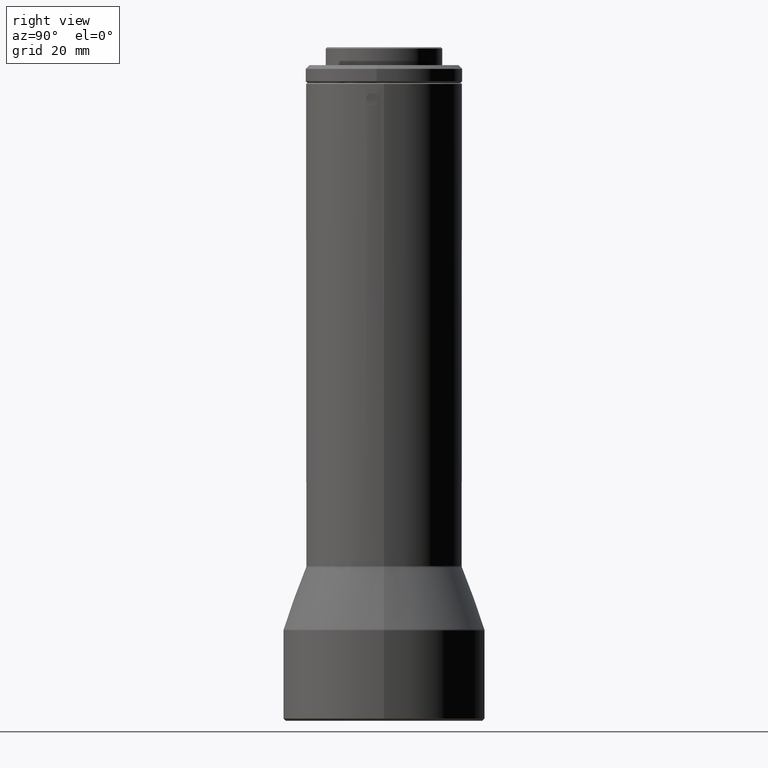
[diagram: clean part render]
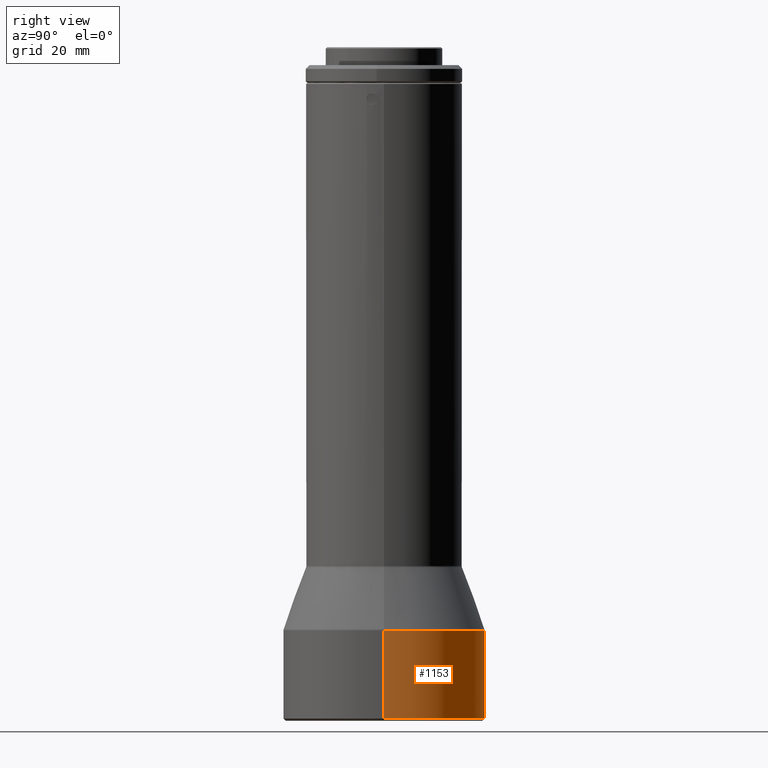
[diagram: same view with one face highlighted and labeled with its STEP entity id]
A machine part, right view. The second image highlights one B-rep face of the part: STEP entity #1153.
In plain terms, the highlighted cylindrical surface (partial cylindrical patch) has radius 22 mm, axis along (0, -0, 1).
Its self-contained STEP definition (entity closure, byte-faithful):
#44 = CARTESIAN_POINT ( 'NONE',  ( -3.341188364417691300E-014, 1.913334782810389500E-014, -32.66869149728914600 ) ) ;
#58 = VERTEX_POINT ( 'NONE', #1696 ) ;
#108 = DIRECTION ( 'NONE',  ( 7.861355739480307100E-016, -5.318304654131179000E-016, 1.000000000000000000 ) ) ;
#126 = CYLINDRICAL_SURFACE ( 'NONE', #1285, 22.00000000000000400 ) ;
#196 = EDGE_CURVE ( 'NONE', #754, #58, #423, .T. ) ;
#243 = CARTESIAN_POINT ( 'NONE',  ( 22.00000000000000400, 1.942890293094025700E-016, 9.831308502710831100 ) ) ;
#423 = CIRCLE ( 'NONE', #1307, 22.00000000000000400 ) ;
#473 = ORIENTED_EDGE ( 'NONE', *, *, #196, .T. ) ;
#498 = VECTOR ( 'NONE', #535, 1000.000000000000000 ) ;
#535 = DIRECTION ( 'NONE',  ( 7.861355739480307100E-016, -5.318304654131179000E-016, 1.000000000000000000 ) ) ;
#578 = FACE_OUTER_BOUND ( 'NONE', #1103, .T. ) ;
#635 = CARTESIAN_POINT ( 'NONE',  ( 21.99999999999998600, 1.534063844257632100E-014, -13.58240557527099000 ) ) ;
#664 = CIRCLE ( 'NONE', #1007, 22.00000000000000400 ) ;
#733 = CARTESIAN_POINT ( 'NONE',  ( -22.00000000000000400, -4.438959975092452800E-015, 9.831308502710866600 ) ) ;
#740 = VECTOR ( 'NONE', #1734, 1000.000000000000000 ) ;
#754 = VERTEX_POINT ( 'NONE', #1263 ) ;
#845 = DIRECTION ( 'NONE',  ( -1.000000000000000000, -1.665334536937734600E-016, 7.885106708985485100E-016 ) ) ;
#894 = CARTESIAN_POINT ( 'NONE',  ( -22.00000000000002100, 5.318943521926112500E-015, -13.58240557527095400 ) ) ;
#993 = DIRECTION ( 'NONE',  ( -7.861355739480307100E-016, 5.318304654131179000E-016, -1.000000000000000000 ) ) ;
#1007 = AXIS2_PLACEMENT_3D ( 'NONE', #1824, #993, #845 ) ;
#1057 = EDGE_CURVE ( 'NONE', #754, #1622, #1143, .T. ) ;
#1103 = EDGE_LOOP ( 'NONE', ( #473, #1725, #1270, #1482 ) ) ;
#1143 = LINE ( 'NONE', #243, #498 ) ;
#1153 = ADVANCED_FACE ( 'NONE', ( #578 ), #126, .T. ) ;
#1174 = DIRECTION ( 'NONE',  ( 7.861355739480307100E-016, -5.318304654131179000E-016, 1.000000000000000000 ) ) ;
#1252 = DIRECTION ( 'NONE',  ( 1.000000000000000000, 1.665334536937734600E-016, -7.885106708985485100E-016 ) ) ;
#1263 = CARTESIAN_POINT ( 'NONE',  ( 21.99999999999996800, 2.279708380936691200E-014, -32.66869149728916000 ) ) ;
#1270 = ORIENTED_EDGE ( 'NONE', *, *, #1543, .T. ) ;
#1285 = AXIS2_PLACEMENT_3D ( 'NONE', #1388, #108, #1252 ) ;
#1307 = AXIS2_PLACEMENT_3D ( 'NONE', #44, #1174, #1313 ) ;
#1313 = DIRECTION ( 'NONE',  ( 1.000000000000000000, 1.665334536937734600E-016, -6.308085367188388300E-016 ) ) ;
#1384 = LINE ( 'NONE', #733, #740 ) ;
#1388 = CARTESIAN_POINT ( 'NONE',  ( -1.121751385605398400E-018, -3.469446951953614200E-015, 9.831308502710848900 ) ) ;
#1406 = VERTEX_POINT ( 'NONE', #894 ) ;
#1408 = EDGE_CURVE ( 'NONE', #58, #1406, #1384, .T. ) ;
#1482 = ORIENTED_EDGE ( 'NONE', *, *, #1057, .F. ) ;
#1543 = EDGE_CURVE ( 'NONE', #1406, #1622, #664, .T. ) ;
#1622 = VERTEX_POINT ( 'NONE', #635 ) ;
#1696 = CARTESIAN_POINT ( 'NONE',  ( -22.00000000000002800, 1.308850064250766000E-014, -32.66869149728913200 ) ) ;
#1725 = ORIENTED_EDGE ( 'NONE', *, *, #1408, .T. ) ;
#1734 = DIRECTION ( 'NONE',  ( 7.861355739480307100E-016, -5.318304654131179000E-016, 1.000000000000000000 ) ) ;
#1824 = CARTESIAN_POINT ( 'NONE',  ( -1.840747530633492900E-014, 8.982679503189128300E-015, -13.58240557527097200 ) ) ;